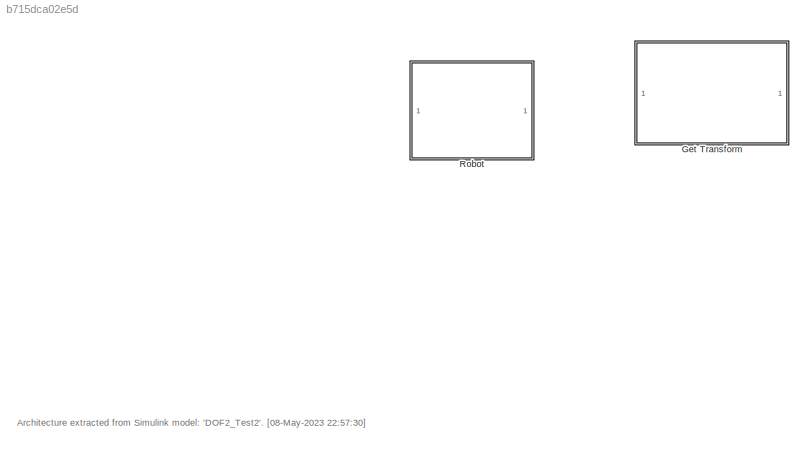
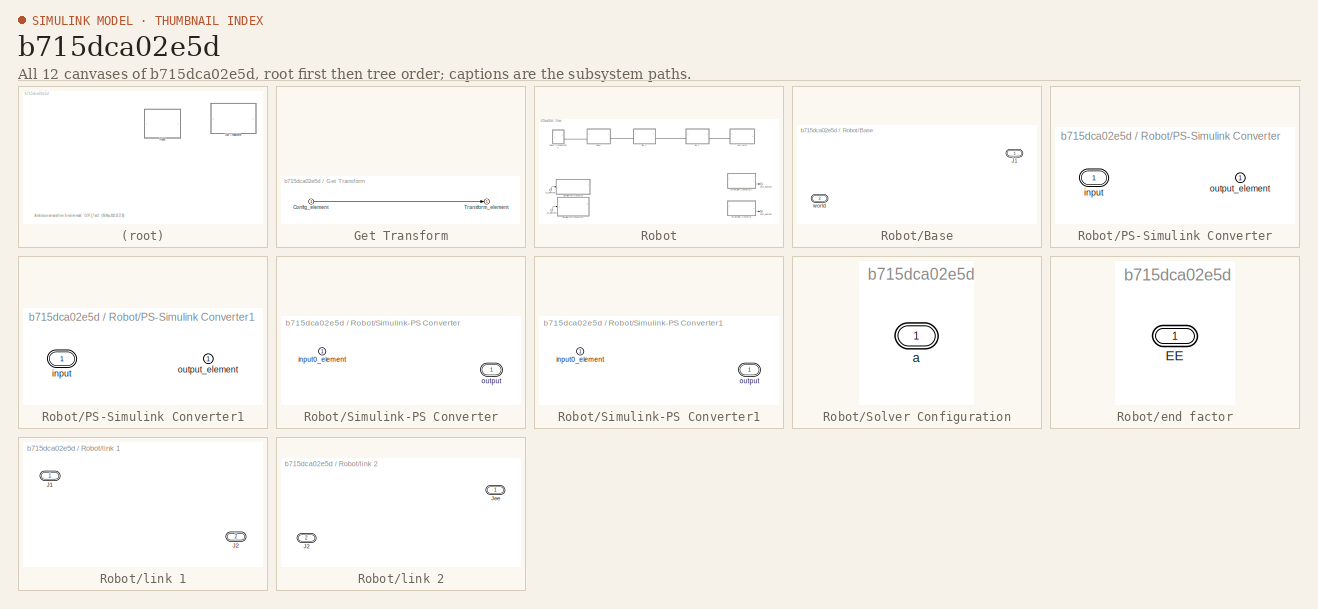
[diagram: thumbnail index - all 12 canvases of the model, root first then tree order]
MODEL slx_b715dca02e5d
KIND model
CONFIG AbsTol = auto
CONFIG EnableMultiTasking = off
CONFIG FixedStep = auto
CONFIG MaxStep = auto
CONFIG MinStep = auto
CONFIG RelTol = 1e-3
CONFIG SampleTimeConstraint = Unconstrained
CONFIG SolverName = VariableStepAuto
CONFIG StartTime = 0.0
CONFIG StopTime = 10.0
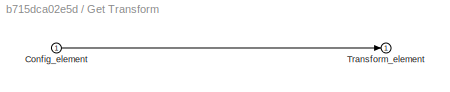
BLOCK [SubSystem] Get Transform
  PortSchema = {"entries":[{"content":{"headerSize":26,"margin":15,"minimumSpacing":25,"sides":[{"content":{"connectorIds":["In1"]},"type":"ConnectorPlacement.EquallySpacedRectSide","uuid":"557e2789-5bde-45a7-9208-ef64bda35799"},{"content":{"connectorIds":["Out1"],"side":"RIGHT"},"type":"ConnectorPlacement.EquallySpacedRectSide","uuid":"adadcf43-a05c-4dbc-9e15-d3b2757a8feb"},{"content":{"connectorIds":[],"side":...<+288ch>
BLOCK [Inport] Get Transform/Config_element
BLOCK [Outport] Get Transform/Transform_element
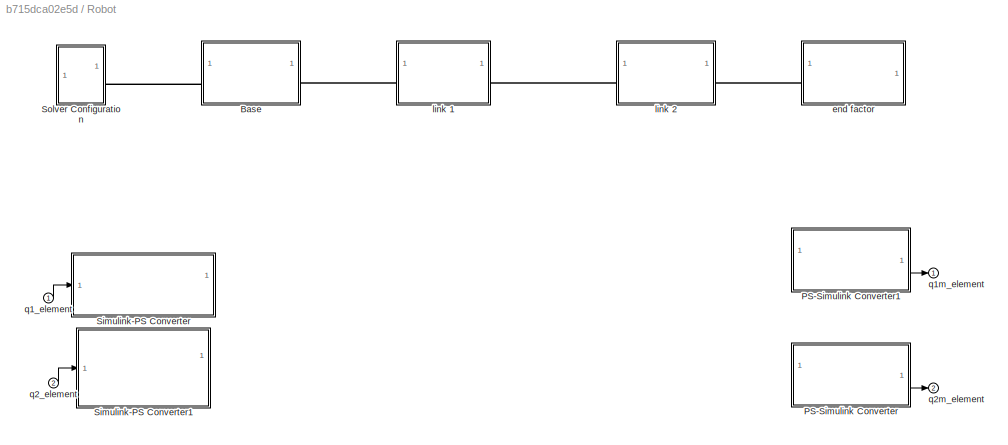
BLOCK [SubSystem] Robot
  PortSchema = {"entries":[{"content":{"headerSize":26,"margin":15,"minimumSpacing":25,"sides":[{"content":{"connectorIds":["In1","In2"]},"type":"ConnectorPlacement.EquallySpacedRectSide","uuid":"557e2789-5bde-45a7-9208-ef64bda35799"},{"content":{"connectorIds":["Out1","Out2"],"side":"RIGHT"},"type":"ConnectorPlacement.EquallySpacedRectSide","uuid":"adadcf43-a05c-4dbc-9e15-d3b2757a8feb"},{"content":{"connectorId...<+301ch>
BLOCK [SubSystem] Robot/Base
  PortSchema = {"entries":[{"content":{"headerSize":26,"margin":15,"minimumSpacing":25,"sides":[{"content":{"connectorIds":["LConn1"]},"type":"ConnectorPlacement.EquallySpacedRectSide","uuid":"557e2789-5bde-45a7-9208-ef64bda35799"},{"content":{"connectorIds":["RConn1"],"side":"RIGHT"},"type":"ConnectorPlacement.EquallySpacedRectSide","uuid":"adadcf43-a05c-4dbc-9e15-d3b2757a8feb"},{"content":{"connectorIds":[],"s...<+293ch>  <repeated x3 — deduplicated; at blocks: Base, link 1, link 2>
BLOCK [PMIOPort] Robot/Base/J1
  Side = Right
BLOCK [PMIOPort] Robot/Base/world
  Port = 2
  Side = Left
BLOCK [SubSystem] Robot/PS-Simulink Converter
  PortSchema = {"entries":[{"content":{"headerSize":26,"margin":15,"minimumSpacing":25,"sides":[{"content":{"connectorIds":["LConn1"]},"type":"ConnectorPlacement.EquallySpacedRectSide","uuid":"557e2789-5bde-45a7-9208-ef64bda35799"},{"content":{"connectorIds":["Out1"],"side":"RIGHT"},"type":"ConnectorPlacement.EquallySpacedRectSide","uuid":"adadcf43-a05c-4dbc-9e15-d3b2757a8feb"},{"content":{"connectorIds":[],"sid...<+291ch>
BLOCK [PMIOPort] Robot/PS-Simulink Converter/input
  Side = Left
BLOCK [Outport] Robot/PS-Simulink Converter/output_element
BLOCK [SubSystem] Robot/PS-Simulink Converter1
  PortSchema = {"entries":[{"content":{"headerSize":26,"margin":15,"minimumSpacing":25,"sides":[{"content":{"connectorIds":["LConn1"]},"type":"ConnectorPlacement.EquallySpacedRectSide","uuid":"557e2789-5bde-45a7-9208-ef64bda35799"},{"content":{"connectorIds":["Out1"],"side":"RIGHT"},"type":"ConnectorPlacement.EquallySpacedRectSide","uuid":"adadcf43-a05c-4dbc-9e15-d3b2757a8feb"},{"content":{"connectorIds":[],"sid...<+291ch>
BLOCK [PMIOPort] Robot/PS-Simulink Converter1/input
  Side = Left
BLOCK [Outport] Robot/PS-Simulink Converter1/output_element
BLOCK [SubSystem] Robot/Simulink-PS Converter
  PortSchema = {"entries":[{"content":{"headerSize":26,"margin":15,"minimumSpacing":25,"sides":[{"content":{"connectorIds":["In1"]},"type":"ConnectorPlacement.EquallySpacedRectSide","uuid":"557e2789-5bde-45a7-9208-ef64bda35799"},{"content":{"connectorIds":["RConn1"],"side":"RIGHT"},"type":"ConnectorPlacement.EquallySpacedRectSide","uuid":"adadcf43-a05c-4dbc-9e15-d3b2757a8feb"},{"content":{"connectorIds":[],"side...<+290ch>
BLOCK [Inport] Robot/Simulink-PS Converter/input0_element
BLOCK [PMIOPort] Robot/Simulink-PS Converter/output
  Side = Right
BLOCK [SubSystem] Robot/Simulink-PS Converter1
  PortSchema = {"entries":[{"content":{"headerSize":26,"margin":15,"minimumSpacing":25,"sides":[{"content":{"connectorIds":["In1"]},"type":"ConnectorPlacement.EquallySpacedRectSide","uuid":"557e2789-5bde-45a7-9208-ef64bda35799"},{"content":{"connectorIds":["RConn1"],"side":"RIGHT"},"type":"ConnectorPlacement.EquallySpacedRectSide","uuid":"adadcf43-a05c-4dbc-9e15-d3b2757a8feb"},{"content":{"connectorIds":[],"side...<+290ch>
BLOCK [Inport] Robot/Simulink-PS Converter1/input0_element
BLOCK [PMIOPort] Robot/Simulink-PS Converter1/output
  Side = Right
BLOCK [SubSystem] Robot/Solver Configuration
  PortSchema = {"entries":[{"content":{"headerSize":26,"margin":15,"minimumSpacing":25,"sides":[{"content":{"connectorIds":[]},"type":"ConnectorPlacement.EquallySpacedRectSide","uuid":"557e2789-5bde-45a7-9208-ef64bda35799"},{"content":{"connectorIds":["RConn1"],"side":"RIGHT"},"type":"ConnectorPlacement.EquallySpacedRectSide","uuid":"adadcf43-a05c-4dbc-9e15-d3b2757a8feb"},{"content":{"connectorIds":[],"side":"TO...<+285ch>
BLOCK [PMIOPort] Robot/Solver Configuration/a
  Side = Right
BLOCK [SubSystem] Robot/end factor
  PortSchema = {"entries":[{"content":{"headerSize":26,"margin":15,"minimumSpacing":25,"sides":[{"content":{"connectorIds":["LConn1"]},"type":"ConnectorPlacement.EquallySpacedRectSide","uuid":"557e2789-5bde-45a7-9208-ef64bda35799"},{"content":{"connectorIds":[],"side":"RIGHT"},"type":"ConnectorPlacement.EquallySpacedRectSide","uuid":"adadcf43-a05c-4dbc-9e15-d3b2757a8feb"},{"content":{"connectorIds":[],"side":"TO...<+285ch>
BLOCK [PMIOPort] Robot/end factor/EE
  Side = Left
BLOCK [SubSystem] Robot/link 1
BLOCK [PMIOPort] Robot/link 1/J1
  Side = Left
BLOCK [PMIOPort] Robot/link 1/J2
  Port = 2
  Side = Right
BLOCK [SubSystem] Robot/link 2
BLOCK [PMIOPort] Robot/link 2/J2
  Port = 2
  Side = Left
BLOCK [PMIOPort] Robot/link 2/Jee
  Side = Right
BLOCK [Inport] Robot/q1_element
BLOCK [Outport] Robot/q1m_element
BLOCK [Inport] Robot/q2_element
  Port = 2
BLOCK [Outport] Robot/q2m_element
  Port = 2
ANNOTATION (root): Architecture extracted from Simulink model: 'DOF2_Test2'. [08-May-2023 22:57:30]
LINE Get Transform/Config_element:1 -> Get Transform/Transform_element:1
LINE Robot/PS-Simulink Converter1:1 -> Robot/q1m_element:1
LINE Robot/PS-Simulink Converter:1 -> Robot/q2m_element:1
LINE Robot/q1_element:1 -> Robot/Simulink-PS Converter:1
LINE Robot/q2_element:1 -> Robot/Simulink-PS Converter1:1
PLINE Robot/Base:LConn1 -- Robot/Solver Configuration:RConn1
PLINE Robot/Base:RConn1 -- Robot/link 1:LConn1
PLINE Robot/end factor:LConn1 -- Robot/link 2:RConn1
PLINE Robot/link 1:RConn1 -- Robot/link 2:LConn1
